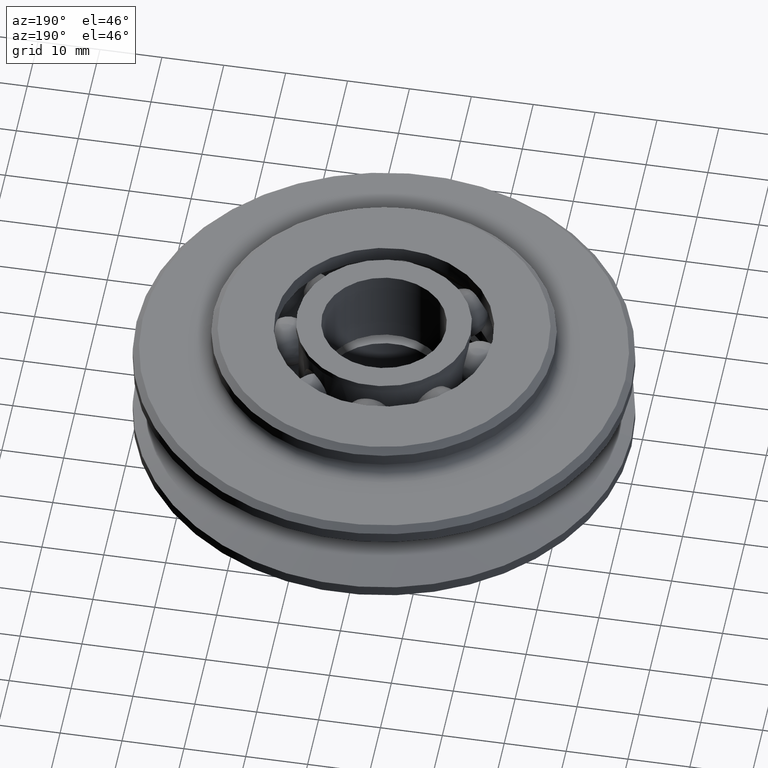
[diagram: clean part render]
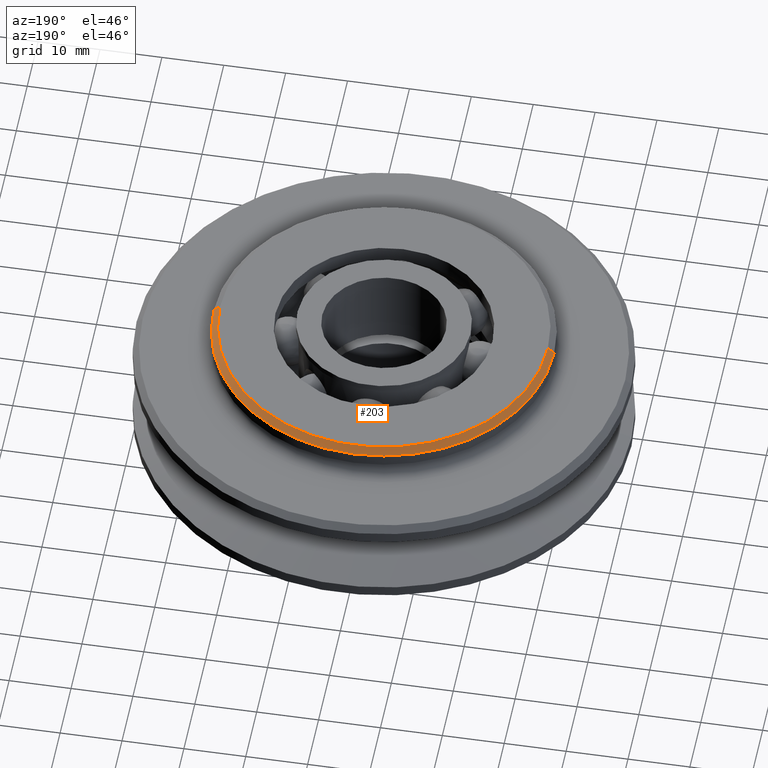
[diagram: same view with one face highlighted and labeled with its STEP entity id]
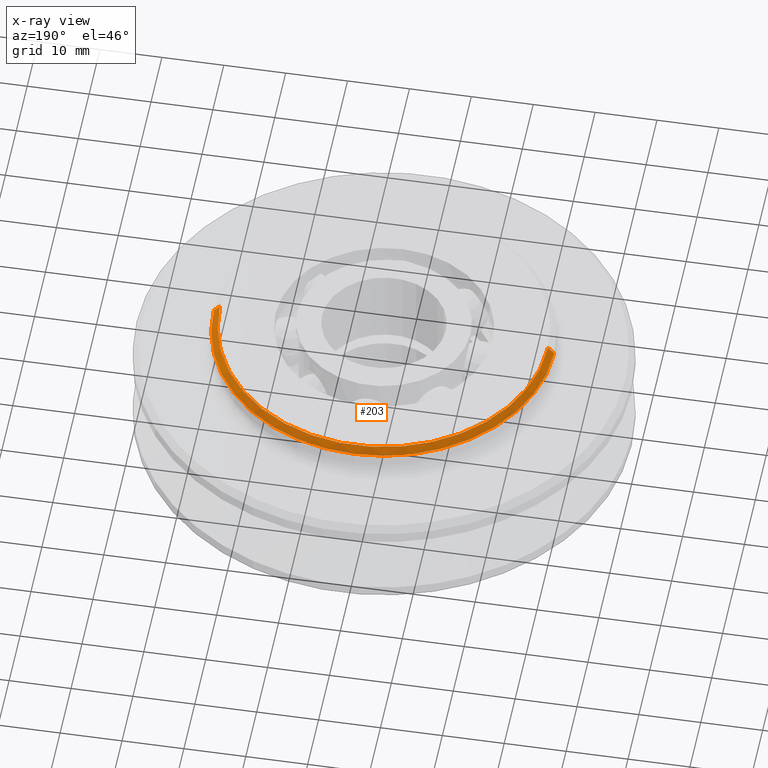
[diagram: x-ray of the same camera — body ghosted, the highlighted face saturated]
A machine part, auxiliary view. The second image highlights one B-rep face of the part: STEP entity #203.
The next image is the same camera in x-ray: the body ghosted, the highlighted face saturated — about 0% of this face is hidden behind the body in this view.
In plain terms, the highlighted conical surface has half-angle 45 deg.
Its self-contained STEP definition (entity closure, byte-faithful):
#203=ADVANCED_FACE('',(#499),#500,.T.);
#499=FACE_OUTER_BOUND('',#909,.T.);
#500=CONICAL_SURFACE('',#910,27.0,0.785398163397448);
#909=EDGE_LOOP('',(#1443,#1444,#1445,#1446));
#910=AXIS2_PLACEMENT_3D('',#1447,#1448,#1449);
#1443=ORIENTED_EDGE('',*,*,#2687,.F.);
#1444=ORIENTED_EDGE('',*,*,#2688,.T.);
#1445=ORIENTED_EDGE('',*,*,#2689,.F.);
#1446=ORIENTED_EDGE('',*,*,#2690,.F.);
#1447=CARTESIAN_POINT('',(0.0,0.0,12.5));
#1448=DIRECTION('',(-0.0,-0.0,-1.0));
#1449=DIRECTION('',(1.0,0.0,0.0));
#2687=EDGE_CURVE('',#3312,#3313,#3314,.T.);
#2688=EDGE_CURVE('',#3312,#3315,#3316,.T.);
#2689=EDGE_CURVE('',#3317,#3315,#3318,.T.);
#2690=EDGE_CURVE('',#3313,#3317,#3319,.T.);
#3312=VERTEX_POINT('',#4973);
#3313=VERTEX_POINT('',#4974);
#3314=LINE('',#4975,#4976);
#3315=VERTEX_POINT('',#4977);
#3316=CIRCLE('',#4978,27.5);
#3317=VERTEX_POINT('',#4979);
#3318=LINE('',#4980,#4981);
#3319=CIRCLE('',#4982,26.5);
#4973=CARTESIAN_POINT('',(27.5,0.0,12.0));
#4974=CARTESIAN_POINT('',(26.5,0.0,13.0));
#4975=CARTESIAN_POINT('',(27.0,-3.30654635769785E-015,12.5));
#4976=VECTOR('',#8265,1.0);
#4977=CARTESIAN_POINT('',(-27.5,3.36777869765522E-015,12.0));
#4978=AXIS2_PLACEMENT_3D('',#8266,#8267,#8268);
#4979=CARTESIAN_POINT('',(-26.5,3.24531401774049E-015,13.0));
#4980=CARTESIAN_POINT('',(-27.0,3.30654635769785E-015,12.5));
#4981=VECTOR('',#8269,1.0);
#4982=AXIS2_PLACEMENT_3D('',#8270,#8271,#8272);
#8265=DIRECTION('',(-0.707106781186548,8.65956056235493E-017,0.707106781186548));
#8266=CARTESIAN_POINT('',(0.0,0.0,12.0));
#8267=DIRECTION('',(0.0,0.0,1.0));
#8268=DIRECTION('',(1.0,0.0,0.0));
#8269=DIRECTION('',(-0.707106781186548,8.65956056235493E-017,-0.707106781186548));
#8270=CARTESIAN_POINT('',(0.0,0.0,13.0));
#8271=DIRECTION('',(0.0,0.0,1.0));
#8272=DIRECTION('',(1.0,0.0,0.0));